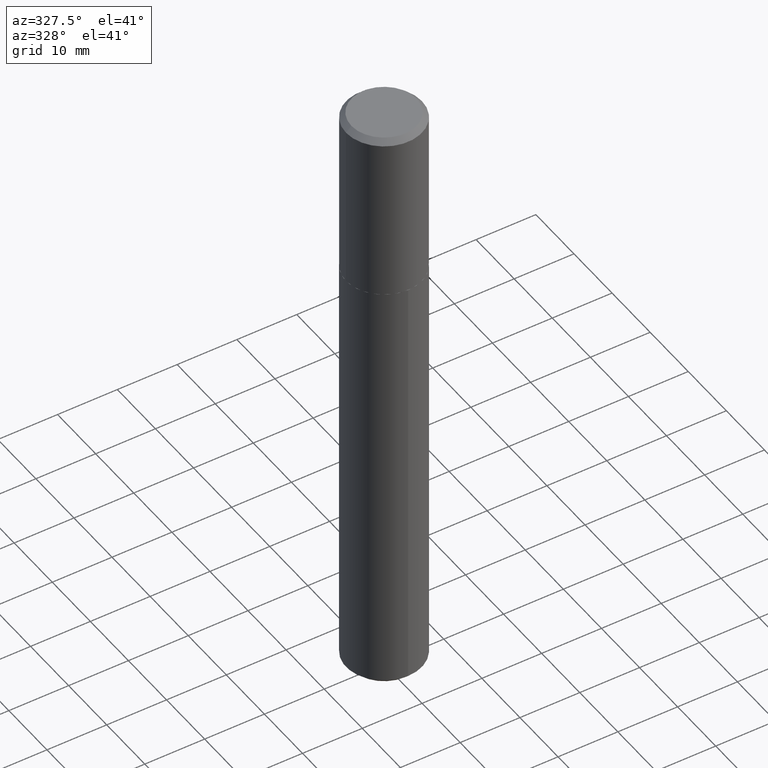
[diagram: clean part render]
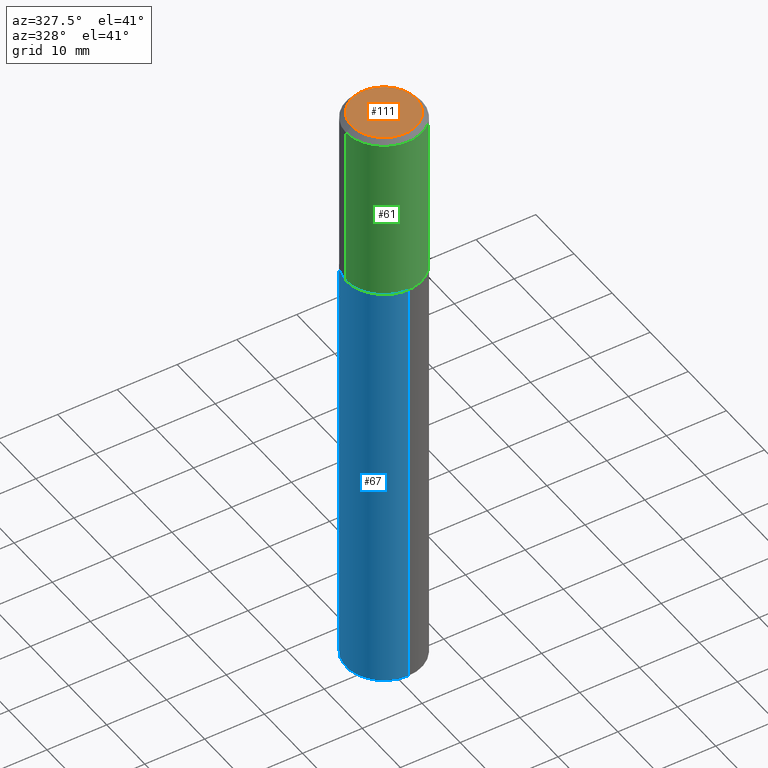
[diagram: same view with three faces highlighted in distinct colors, each labeled with its STEP entity id]
A machine part, auxiliary view with three faces highlighted in distinct colors.
Their STEP definitions:

[orange] entity #111 — the highlighted planar face has unit normal (0, -0, -1).
#29 = EDGE_CURVE ( 'NONE', #54, #268, #416, .T. ) ;
#48 = CARTESIAN_POINT ( 'NONE',  ( -5.998655598456380365E-46, 8.564490386131638345E-32, 2.452967538692148404E-17 ) ) ;
#51 = AXIS2_PLACEMENT_3D ( 'NONE', #48, #367, #238 ) ;
#54 = VERTEX_POINT ( 'NONE', #237 ) ;
#69 = EDGE_CURVE ( 'NONE', #268, #54, #263, .T. ) ;
#71 = DIRECTION ( 'NONE',  ( 2.438088387897960049E-29, -3.491481338843145188E-15, -1.000000000000000000 ) ) ;
#81 = PLANE ( 'NONE',  #136 ) ;
#111 = ADVANCED_FACE ( 'NONE', ( #247 ), #81, .F. ) ;
#112 = CARTESIAN_POINT ( 'NONE',  ( -5.998655598456380365E-46, 8.564490386131638345E-32, 2.452967538692148404E-17 ) ) ;
#122 = AXIS2_PLACEMENT_3D ( 'NONE', #112, #204, #301 ) ;
#136 = AXIS2_PLACEMENT_3D ( 'NONE', #336, #71, #146 ) ;
#146 = DIRECTION ( 'NONE',  ( -1.000000000000000000, 6.982962677686265922E-15, -4.876176775795935793E-29 ) ) ;
#189 = CARTESIAN_POINT ( 'NONE',  ( 0.2150000000000000244, -1.656166707911636545E-15, 2.452967538693252193E-17 ) ) ;
#194 = ORIENTED_EDGE ( 'NONE', *, *, #69, .T. ) ;
#204 = DIRECTION ( 'NONE',  ( -2.445468806185136597E-29, 3.491481338843145583E-15, 1.000000000000000000 ) ) ;
#209 = ORIENTED_EDGE ( 'NONE', *, *, #29, .T. ) ;
#227 = EDGE_LOOP ( 'NONE', ( #209, #194 ) ) ;
#237 = CARTESIAN_POINT ( 'NONE',  ( -0.2150000000000000244, 1.562437899132301703E-15, 2.452967538691076971E-17 ) ) ;
#238 = DIRECTION ( 'NONE',  ( 1.000000000000000000, -6.982962677686266711E-15, 4.875660406730183845E-29 ) ) ;
#247 = FACE_OUTER_BOUND ( 'NONE', #227, .T. ) ;
#263 = CIRCLE ( 'NONE', #122, 0.2150000000000000244 ) ;
#268 = VERTEX_POINT ( 'NONE', #189 ) ;
#301 = DIRECTION ( 'NONE',  ( 1.000000000000000000, -6.982962677686266711E-15, 4.875660406730183845E-29 ) ) ;
#336 = CARTESIAN_POINT ( 'NONE',  ( -2.999327799228190183E-46, 4.282245193065819172E-32, 1.226483769346074202E-17 ) ) ;
#367 = DIRECTION ( 'NONE',  ( -2.445468806185136597E-29, 3.491481338843145583E-15, 1.000000000000000000 ) ) ;
#416 = CIRCLE ( 'NONE', #51, 0.2150000000000000244 ) ;

[blue] entity #67 — the highlighted cylindrical surface (partial cylindrical patch) has radius 6.35 mm, axis along (-0, 0, 1).
#4 = DIRECTION ( 'NONE',  ( -2.447946569938002556E-29, 3.487933040123486811E-15, 1.000000000000000000 ) ) ;
#8 = CARTESIAN_POINT ( 'NONE',  ( 9.703320665582205963E-29, -1.383364634014924079E-14, -3.964999999999999858 ) ) ;
#12 = AXIS2_PLACEMENT_3D ( 'NONE', #328, #100, #35 ) ;
#21 = DIRECTION ( 'NONE',  ( -2.447946569938002556E-29, 3.487933040123486811E-15, 1.000000000000000000 ) ) ;
#35 = DIRECTION ( 'NONE',  ( -6.982962677686265922E-15, -1.000000000000000000, 3.278217592397115862E-15 ) ) ;
#37 = CARTESIAN_POINT ( 'NONE',  ( 2.751152406958279232E-29, -3.927916506198539224E-15, -1.125000000000000222 ) ) ;
#38 = CARTESIAN_POINT ( 'NONE',  ( 1.776356839400348678E-15, 0.2499999999999863720, -3.965000000000001190 ) ) ;
#67 = ADVANCED_FACE ( 'NONE', ( #142 ), #332, .T. ) ;
#94 = EDGE_CURVE ( 'NONE', #349, #172, #213, .T. ) ;
#100 = DIRECTION ( 'NONE',  ( -2.447946569938002556E-29, 3.487933040123486811E-15, 1.000000000000000000 ) ) ;
#107 = ORIENTED_EDGE ( 'NONE', *, *, #400, .T. ) ;
#142 = FACE_OUTER_BOUND ( 'NONE', #376, .T. ) ;
#151 = CARTESIAN_POINT ( 'NONE',  ( -1.745740669421539068E-15, -0.2500000000000039413, -1.124999999999999334 ) ) ;
#162 = EDGE_CURVE ( 'NONE', #403, #319, #184, .T. ) ;
#172 = VERTEX_POINT ( 'NONE', #288 ) ;
#178 = DIRECTION ( 'NONE',  ( -6.982962677686265922E-15, -1.000000000000000000, 3.278217592397115862E-15 ) ) ;
#183 = ORIENTED_EDGE ( 'NONE', *, *, #162, .T. ) ;
#184 = LINE ( 'NONE', #342, #371 ) ;
#196 = AXIS2_PLACEMENT_3D ( 'NONE', #37, #21, #178 ) ;
#207 = CIRCLE ( 'NONE', #252, 0.2500000000000000000 ) ;
#213 = LINE ( 'NONE', #392, #236 ) ;
#236 = VECTOR ( 'NONE', #239, 39.37007874015748143 ) ;
#239 = DIRECTION ( 'NONE',  ( -2.447946569938002556E-29, 3.487933040123486811E-15, 1.000000000000000000 ) ) ;
#243 = CIRCLE ( 'NONE', #12, 0.2500000000000000000 ) ;
#252 = AXIS2_PLACEMENT_3D ( 'NONE', #8, #4, #385 ) ;
#270 = CARTESIAN_POINT ( 'NONE',  ( -1.745740669421467873E-15, -0.2500000000000136002, -3.964999999999998970 ) ) ;
#281 = ORIENTED_EDGE ( 'NONE', *, *, #94, .F. ) ;
#288 = CARTESIAN_POINT ( 'NONE',  ( 1.776356839400347889E-15, 0.2499999999999960587, -1.125000000000000888 ) ) ;
#319 = VERTEX_POINT ( 'NONE', #151 ) ;
#328 = CARTESIAN_POINT ( 'NONE',  ( 2.751152406958279232E-29, -3.927916506198539224E-15, -1.125000000000000222 ) ) ;
#332 = CYLINDRICAL_SURFACE ( 'NONE', #196, 0.2500000000000000000 ) ;
#338 = ORIENTED_EDGE ( 'NONE', *, *, #377, .F. ) ;
#342 = CARTESIAN_POINT ( 'NONE',  ( -1.745740669421539068E-15, -0.2500000000000039413, -1.124999999999999334 ) ) ;
#349 = VERTEX_POINT ( 'NONE', #38 ) ;
#355 = DIRECTION ( 'NONE',  ( -2.447946569938002556E-29, 3.487933040123486811E-15, 1.000000000000000000 ) ) ;
#371 = VECTOR ( 'NONE', #355, 39.37007874015748143 ) ;
#376 = EDGE_LOOP ( 'NONE', ( #281, #107, #183, #338 ) ) ;
#377 = EDGE_CURVE ( 'NONE', #172, #319, #243, .T. ) ;
#385 = DIRECTION ( 'NONE',  ( -6.982962677686265922E-15, -1.000000000000000000, 4.370956789862821150E-15 ) ) ;
#392 = CARTESIAN_POINT ( 'NONE',  ( 1.776356839400277680E-15, 0.2499999999999960587, -1.125000000000000888 ) ) ;
#400 = EDGE_CURVE ( 'NONE', #349, #403, #207, .T. ) ;
#403 = VERTEX_POINT ( 'NONE', #270 ) ;

[green] entity #61 — the highlighted cylindrical surface (partial cylindrical patch) has radius 6.35 mm, axis along (-0, 0, 1).
#1 = CARTESIAN_POINT ( 'NONE',  ( -0.2500000000000001110, -2.149813926128866467E-15, -1.124500000000000055 ) ) ;
#11 = DIRECTION ( 'NONE',  ( 1.000000000000000000, -6.982962677686266711E-15, 0.000000000000000000 ) ) ;
#28 = DIRECTION ( 'NONE',  ( -2.445468806185136597E-29, 3.491481338843145583E-15, 1.000000000000000000 ) ) ;
#34 = EDGE_CURVE ( 'NONE', #311, #95, #108, .T. ) ;
#42 = VECTOR ( 'NONE', #269, 39.37007874015748143 ) ;
#44 = CARTESIAN_POINT ( 'NONE',  ( -0.2500000000000000555, 1.776356839400250859E-15, -1.229733772563726866E-29 ) ) ;
#58 = CARTESIAN_POINT ( 'NONE',  ( 0.2500000000000000555, -1.745740669421567269E-15, 1.219044193948984228E-29 ) ) ;
#60 = DIRECTION ( 'NONE',  ( 1.000000000000000000, -6.982962677686265922E-15, 0.000000000000000000 ) ) ;
#61 = ADVANCED_FACE ( 'NONE', ( #80 ), #308, .T. ) ;
#80 = FACE_OUTER_BOUND ( 'NONE', #193, .T. ) ;
#82 = VERTEX_POINT ( 'NONE', #244 ) ;
#83 = CARTESIAN_POINT ( 'NONE',  ( 2.749929672555186430E-29, -3.926170765529117721E-15, -1.124500000000000055 ) ) ;
#84 = VECTOR ( 'NONE', #92, 39.37007874015748143 ) ;
#86 = VERTEX_POINT ( 'NONE', #116 ) ;
#92 = DIRECTION ( 'NONE',  ( -2.445468806185136877E-29, 3.491481338843145188E-15, 1.000000000000000000 ) ) ;
#95 = VERTEX_POINT ( 'NONE', #365 ) ;
#104 = DIRECTION ( 'NONE',  ( -2.445468806185136597E-29, 3.491481338843145583E-15, 1.000000000000000000 ) ) ;
#108 = LINE ( 'NONE', #44, #42 ) ;
#116 = CARTESIAN_POINT ( 'NONE',  ( 0.2500000000000000000, -1.867942516281077449E-15, -0.03500000000000021844 ) ) ;
#125 = LINE ( 'NONE', #58, #84 ) ;
#129 = ORIENTED_EDGE ( 'NONE', *, *, #145, .T. ) ;
#145 = EDGE_CURVE ( 'NONE', #311, #82, #372, .T. ) ;
#191 = ORIENTED_EDGE ( 'NONE', *, *, #320, .T. ) ;
#193 = EDGE_LOOP ( 'NONE', ( #331, #129, #191, #379 ) ) ;
#210 = DIRECTION ( 'NONE',  ( 1.000000000000000000, -6.982962677686267499E-15, 4.876176775795935793E-29 ) ) ;
#235 = EDGE_CURVE ( 'NONE', #95, #86, #310, .T. ) ;
#244 = CARTESIAN_POINT ( 'NONE',  ( 0.2500000000000001110, -5.671911434950684398E-15, -1.124500000000000055 ) ) ;
#253 = AXIS2_PLACEMENT_3D ( 'NONE', #83, #28, #60 ) ;
#269 = DIRECTION ( 'NONE',  ( -2.445468806185136877E-29, 3.491481338843145188E-15, 1.000000000000000000 ) ) ;
#285 = AXIS2_PLACEMENT_3D ( 'NONE', #391, #304, #11 ) ;
#304 = DIRECTION ( 'NONE',  ( -2.445468806185136597E-29, 3.491481338843145583E-15, 1.000000000000000000 ) ) ;
#308 = CYLINDRICAL_SURFACE ( 'NONE', #317, 0.2500000000000000555 ) ;
#310 = CIRCLE ( 'NONE', #285, 0.2500000000000000000 ) ;
#311 = VERTEX_POINT ( 'NONE', #1 ) ;
#317 = AXIS2_PLACEMENT_3D ( 'NONE', #389, #104, #210 ) ;
#320 = EDGE_CURVE ( 'NONE', #82, #86, #125, .T. ) ;
#331 = ORIENTED_EDGE ( 'NONE', *, *, #34, .F. ) ;
#365 = CARTESIAN_POINT ( 'NONE',  ( -0.2500000000000000000, -2.478294667940632885E-16, -0.03500000000000021844 ) ) ;
#372 = CIRCLE ( 'NONE', #253, 0.2500000000000001110 ) ;
#379 = ORIENTED_EDGE ( 'NONE', *, *, #235, .F. ) ;
#389 = CARTESIAN_POINT ( 'NONE',  ( 0.000000000000000000, 0.000000000000000000, 0.000000000000000000 ) ) ;
#391 = CARTESIAN_POINT ( 'NONE',  ( 8.559140821648030357E-31, -1.222018468595108458E-16, -0.03500000000000021844 ) ) ;